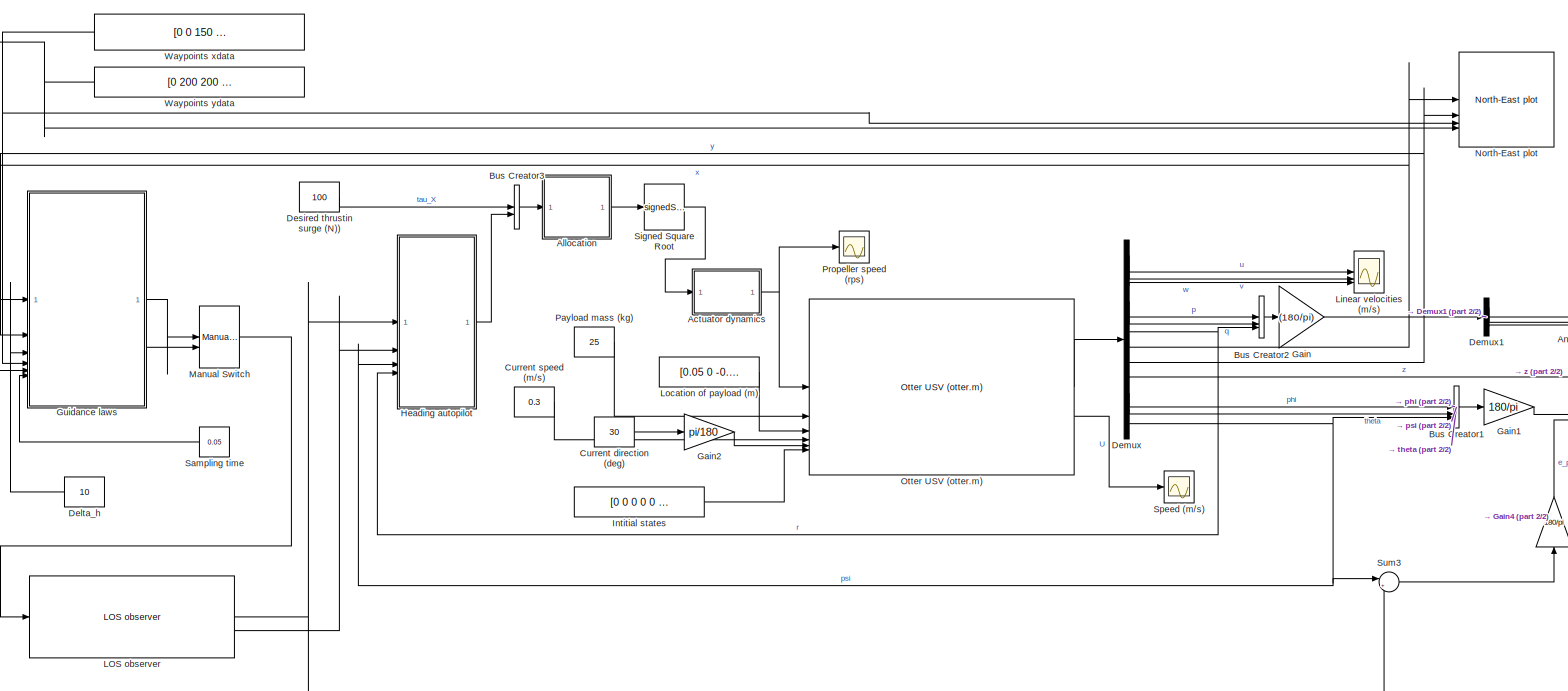
[diagram: root canvas - part 1/2, most of the canvas]
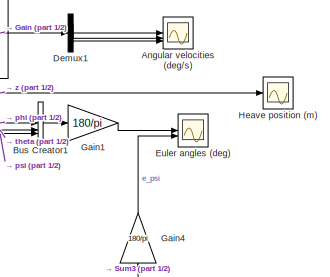
[diagram: root canvas - part 2/2, middle right region]
MODEL slx_11f2b5283f90
KIND model
CONFIG AbsTol = auto
CONFIG EnableMultiTasking = off
CONFIG FixedStep = 0.05
CONFIG MaxStep = auto
CONFIG MinStep = auto
CONFIG RelTol = 1e-3
CONFIG SampleTimeConstraint = Unconstrained
CONFIG SolverName = ode4
CONFIG StartTime = 0.0
CONFIG StopTime = 1200
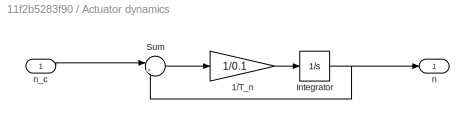
BLOCK [SubSystem] Actuator dynamics
BLOCK [Gain] Actuator dynamics/1//T_n
  Gain = 1/0.1
BLOCK [Integrator] Actuator dynamics/Integrator
BLOCK [Sum] Actuator dynamics/Sum
  Inputs = |+-
BLOCK [Outport] Actuator dynamics/n
BLOCK [Inport] Actuator dynamics/n_c
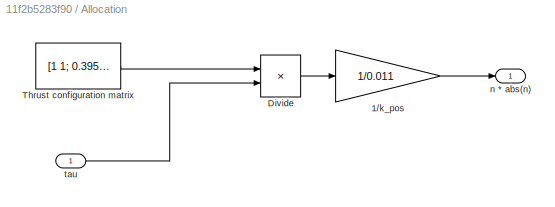
BLOCK [SubSystem] Allocation
BLOCK [Gain] Allocation/1//k_pos
  Gain = 1/0.011
BLOCK [Product] Allocation/Divide
  Inputs = /*
  Multiplication = Matrix(*)
BLOCK [Constant] Allocation/Thrust configuration matrix
  Value = [1 1; 0.395 -0.395]
BLOCK [Outport] Allocation/n * abs(n)
BLOCK [Inport] Allocation/tau
BLOCK [Scope] Angular velocities (deg//s)
  Floating = off
  NumInputPorts = 3
  ScopeSpecificationString = Simulink.scopes.TimeScopeBlockCfg('CurrentConfiguration', extmgr.ConfigurationSet(extmgr.Configuration('Core','General UI',true),extmgr.Configuration('Core','Source UI',true),extmgr.Configuration('Sources','WiredSimulink',true,'DataLoggingVariableName','ScopeData3'),extmgr.Configuration('Visuals','Time Domain',true,'SerializedDisplays',{struct('MinYLimReal','-1.5053','MaxYLimReal','1.05863','YLabe...<+2992ch>
BLOCK [BusCreator] Bus Creator1
  DisplayOption = bar
  InheritFromInputs = on
  Inputs = 3
BLOCK [BusCreator] Bus Creator2
  DisplayOption = bar
  InheritFromInputs = on
  Inputs = 3
BLOCK [BusCreator] Bus Creator3
  DisplayOption = bar
  InheritFromInputs = on
  Inputs = 2
BLOCK [Constant] Current direction (deg)
  Value = 30
BLOCK [Constant] Current speed (m//s)
  Value = 0.3
BLOCK [Constant] Delta_h
  NameLocation = top
  Value = 10
BLOCK [Demux] Demux
  Outputs = 12
BLOCK [Demux] Demux1
  Outputs = 3
BLOCK [Constant] Desired thrustin surge (N))
  Value = 100
BLOCK [Scope] Euler angles (deg)
  Floating = off
  NumInputPorts = 2
  ScopeSpecificationString = Simulink.scopes.TimeScopeBlockCfg('CurrentConfiguration', extmgr.ConfigurationSet(extmgr.Configuration('Core','General UI',true),extmgr.Configuration('Core','Source UI',true),extmgr.Configuration('Sources','WiredSimulink',true,'DataLoggingVariableName','ScopeData1'),extmgr.Configuration('Visuals','Time Domain',true,'SerializedDisplays',{struct('MinYLimReal','-453.68284','MaxYLimReal','213.86847','...<+2407ch>
BLOCK [Gain] Gain
  Gain = (180/pi)
BLOCK [Gain] Gain1
  Gain = 180/pi
BLOCK [Gain] Gain2
  Gain = pi/180
BLOCK [Gain] Gain4
  Gain = 180/pi
  NameLocation = right
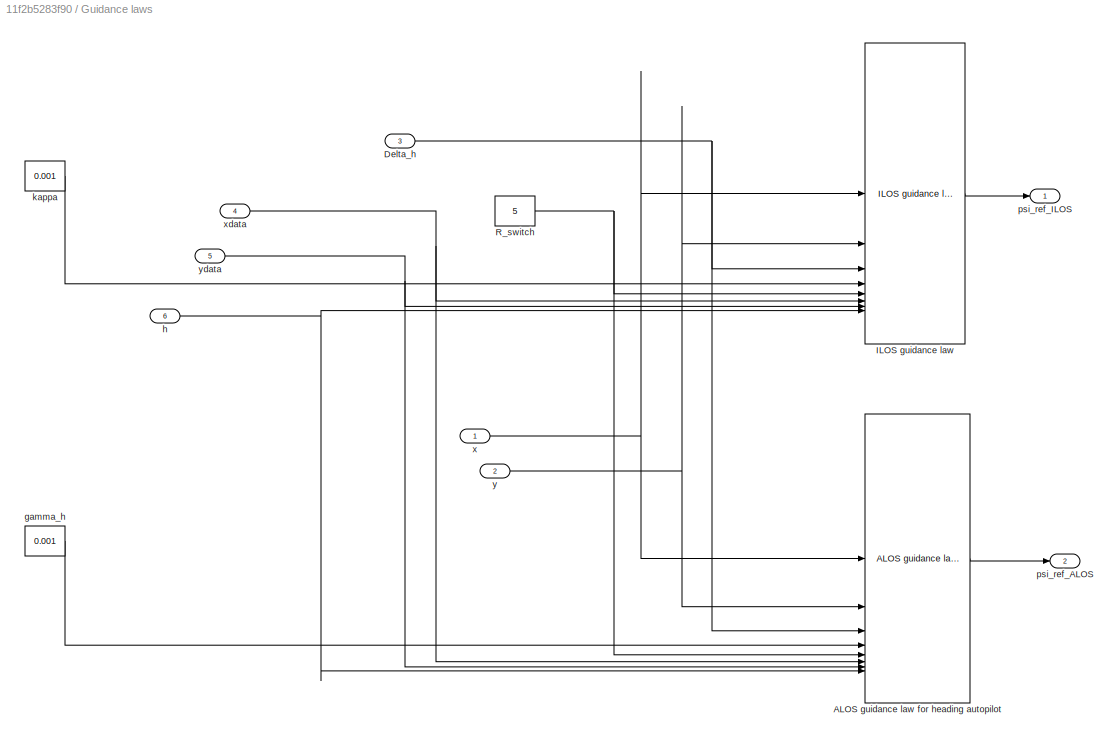
BLOCK [SubSystem] Guidance laws
BLOCK [Reference] Guidance laws/ALOS guidance law for heading autopilot  REF=mssSimulink/Guidance/ALOS guidance law for heading autopilot
  SourceBlock = mssSimulink/Guidance/ALOS guidance law for heading autopilot
  SourceType = SubSystem
BLOCK [Inport] Guidance laws/Delta_h
  Port = 3
BLOCK [Reference] Guidance laws/ILOS guidance law  REF=mssSimulink/Guidance/ILOS guidance law for heading autopilot
  SourceBlock = mssSimulink/Guidance/ILOS guidance law for heading autopilot
  SourceType = SubSystem
BLOCK [Constant] Guidance laws/R_switch
  Value = 5
BLOCK [Constant] Guidance laws/gamma_h
  Value = 0.001
BLOCK [Inport] Guidance laws/h
  Port = 6
BLOCK [Constant] Guidance laws/kappa
  Value = 0.001
BLOCK [Outport] Guidance laws/psi_ref_ALOS
  Port = 2
BLOCK [Outport] Guidance laws/psi_ref_ILOS
BLOCK [Inport] Guidance laws/x
BLOCK [Inport] Guidance laws/xdata
  Port = 4
BLOCK [Inport] Guidance laws/y
  Port = 2
BLOCK [Inport] Guidance laws/ydata
  Port = 5
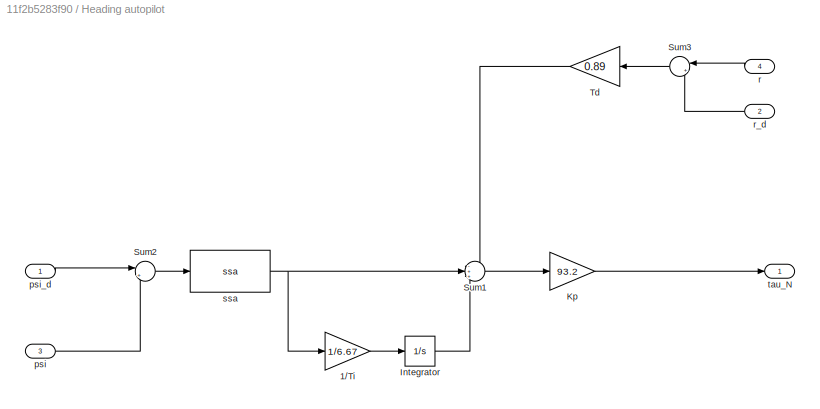
BLOCK [SubSystem] Heading autopilot
BLOCK [Gain] Heading autopilot/1//Ti
  Gain = 1/6.67
  NameLocation = top
  OutDataTypeStr = Inherit: Same as input
  ParamDataTypeStr = Inherit: Same as input
  SaturateOnIntegerOverflow = on
BLOCK [Integrator] Heading autopilot/Integrator
BLOCK [Gain] Heading autopilot/Kp
  Gain = 93.2
  NameLocation = top
  OutDataTypeStr = Inherit: Same as input
  ParamDataTypeStr = Inherit: Same as input
  SaturateOnIntegerOverflow = on
BLOCK [Sum] Heading autopilot/Sum1
  InputSameDT = on
  Inputs = -++
  OutDataTypeStr = Inherit: Same as first input
  SaturateOnIntegerOverflow = on
BLOCK [Sum] Heading autopilot/Sum2
  InputSameDT = on
  Inputs = |+-
  OutDataTypeStr = Inherit: Same as first input
  SaturateOnIntegerOverflow = on
BLOCK [Sum] Heading autopilot/Sum3
  InputSameDT = on
  Inputs = |+-
  NameLocation = top
  OutDataTypeStr = Inherit: Same as first input
  SaturateOnIntegerOverflow = on
BLOCK [Gain] Heading autopilot/Td
  Gain = 0.89
  NameLocation = top
  OutDataTypeStr = Inherit: Same as input
  ParamDataTypeStr = Inherit: Same as input
  SaturateOnIntegerOverflow = on
BLOCK [Inport] Heading autopilot/psi
  Port = 3
BLOCK [Inport] Heading autopilot/psi_d
BLOCK [Inport] Heading autopilot/r
  NameLocation = top
  Port = 4
BLOCK [Inport] Heading autopilot/r_d
  NameLocation = top
  Port = 2
BLOCK [Reference] Heading autopilot/ssa   REF=mssSimulink/Utilities/Math Operations/ssa
  SourceBlock = mssSimulink/Utilities/Math Operations/ssa
  SourceType = SubSystem
BLOCK [Outport] Heading autopilot/tau_N
BLOCK [Scope] Heave position (m)
  Floating = off
  NumInputPorts = 1
  ScopeSpecificationString = Simulink.scopes.TimeScopeBlockCfg('CurrentConfiguration', extmgr.ConfigurationSet(extmgr.Configuration('Core','General UI',true),extmgr.Configuration('Core','Source UI',true),extmgr.Configuration('Sources','WiredSimulink',true,'DataLoggingVariableName','ScopeData4'),extmgr.Configuration('Visuals','Time Domain',true,'SerializedDisplays',{struct('MinYLimReal','-0.00647','MaxYLimReal','0.05824','YLab...<+1640ch>
BLOCK [Constant] Intitial states
  Value = [0 0 0 0 0 0 0 0 0 0 0 0]
BLOCK [Reference] LOS observer  REF=mssSimulink/Guidance/LOS observer
  SourceBlock = mssSimulink/Guidance/LOS observer
  SourceType = LOS observer
BLOCK [Scope] Linear velocities (m//s)
  Floating = off
  NumInputPorts = 3
  ScopeSpecificationString = Simulink.scopes.TimeScopeBlockCfg('CurrentConfiguration', extmgr.ConfigurationSet(extmgr.Configuration('Core','General UI',true),extmgr.Configuration('Core','Source UI',true),extmgr.Configuration('Sources','WiredSimulink',true,'DataLoggingVariableName','ScopeData2'),extmgr.Configuration('Visuals','Time Domain',true,'SerializedDisplays',{struct('MinYLimReal','-0.19607','MaxYLimReal','1.76461','YLab...<+3341ch>
BLOCK [Constant] Location of payload (m)
  Value = [0.05 0 -0.35]
BLOCK [ManualSwitch] Manual Switch
BLOCK [Reference] North-East plot  REF=mssSimulink/Utilities/Visualization/North-East plot
  SourceBlock = mssSimulink/Utilities/Visualization/North-East plot
BLOCK [Reference] Otter USV (otter.m)   REF=mssSimulink/Marine craft models/Otter USV (otter.m)
  SourceBlock = mssSimulink/Marine craft models/Otter USV (otter.m)
BLOCK [Constant] Payload mass (kg)
  Value = 25
BLOCK [Scope] Propeller speed (rps)
  Floating = off
  NumInputPorts = 1
  ScopeSpecificationString = Simulink.scopes.TimeScopeBlockCfg('CurrentConfiguration', extmgr.ConfigurationSet(extmgr.Configuration('Core','General UI',true),extmgr.Configuration('Core','Source UI',true),extmgr.Configuration('Sources','WiredSimulink',true,'DataLoggingVariableName','ScopeData1'),extmgr.Configuration('Visuals','Time Domain',true,'SerializedDisplays',{struct('MinYLimReal','-154.47777','MaxYLimReal','187.68868','...<+1630ch>
BLOCK [Constant] Sampling time
  NameLocation = top
  Value = 0.05
BLOCK [Sqrt] Signed Square Root
  Operator = signedSqrt
BLOCK [Scope] Speed (m//s)
  Floating = off
  NumInputPorts = 1
  ScopeSpecificationString = Simulink.scopes.TimeScopeBlockCfg('CurrentConfiguration', extmgr.ConfigurationSet(extmgr.Configuration('Core','General UI',true),extmgr.Configuration('Core','Source UI',true),extmgr.Configuration('Sources','WiredSimulink',true),extmgr.Configuration('Visuals','Time Domain',true,'SerializedDisplays',{struct('MinYLimReal','-0.19141','MaxYLimReal','1.72272','YLabelReal','','MinYLimMag','0.00000','MaxY...<+1482ch>
BLOCK [Sum] Sum3
  InputSameDT = on
  Inputs = |+-
  OutDataTypeStr = Inherit: Same as first input
  SaturateOnIntegerOverflow = on
BLOCK [Constant] Waypoints xdata
  NameLocation = top
  Value = [0 0   150 150 -100 -100 200]'
BLOCK [Constant] Waypoints ydata
  NameLocation = top
  Value = [0 200 200 -50  -50  250 250]'
LINE Actuator dynamics/1//T_n:1 -> Actuator dynamics/Integrator:1
NET Actuator dynamics/Integrator:1 -> Actuator dynamics/Sum:2, Actuator dynamics/n:1
LINE Actuator dynamics/Sum:1 -> Actuator dynamics/1//T_n:1
LINE Actuator dynamics/n_c:1 -> Actuator dynamics/Sum:1
NET Actuator dynamics:1 -> Otter USV (otter.m) :1, Propeller speed (rps):1
LINE Allocation/1//k_pos:1 -> Allocation/n * abs(n):1
LINE Allocation/Divide:1 -> Allocation/1//k_pos:1
LINE Allocation/Thrust configuration matrix:1 -> Allocation/Divide:1
LINE Allocation/tau:1 -> Allocation/Divide:2
LINE Allocation:1 -> Signed Square Root:1
LINE Bus Creator1:1 -> Gain1:1
LINE Bus Creator2:1 -> Gain:1
LINE Bus Creator3:1 -> Allocation:1
LINE Current direction (deg):1 -> Gain2:1
LINE Current speed (m//s):1 -> Otter USV (otter.m) :4
LINE Delta_h:1 -> Guidance laws:3
LINE Demux1:1 -> Angular velocities (deg//s):1
LINE Demux1:2 -> Angular velocities (deg//s):2
LINE Demux1:3 -> Angular velocities (deg//s):3
LINE Demux:1 -> Linear velocities (m//s):1
LINE Demux:10 -> Bus Creator1:1
LINE Demux:11 -> Bus Creator1:2
NET Demux:12 -> Bus Creator1:3, Heading autopilot:3, Sum3:1
LINE Demux:2 -> Linear velocities (m//s):2
LINE Demux:3 -> Linear velocities (m//s):3
LINE Demux:4 -> Bus Creator2:1
LINE Demux:5 -> Bus Creator2:2
NET Demux:6 -> Bus Creator2:3, Heading autopilot:4
NET Demux:7 -> Guidance laws:1, North-East plot:1
NET Demux:8 -> Guidance laws:2, North-East plot:2
LINE Demux:9 -> Heave position (m):1
LINE Desired thrustin surge (N)):1 -> Bus Creator3:1
LINE Gain1:1 -> Euler angles (deg):1
LINE Gain2:1 -> Otter USV (otter.m) :5
LINE Gain4:1 -> Euler angles (deg):2
LINE Gain:1 -> Demux1:1
LINE Guidance laws/ALOS guidance law for heading autopilot:1 -> Guidance laws/psi_ref_ALOS:1
NET Guidance laws/Delta_h:1 -> Guidance laws/ALOS guidance law for heading autopilot:3, Guidance laws/ILOS guidance law:3
LINE Guidance laws/ILOS guidance law:1 -> Guidance laws/psi_ref_ILOS:1
NET Guidance laws/R_switch:1 -> Guidance laws/ALOS guidance law for heading autopilot:5, Guidance laws/ILOS guidance law:5
LINE Guidance laws/gamma_h:1 -> Guidance laws/ALOS guidance law for heading autopilot:4
NET Guidance laws/h:1 -> Guidance laws/ALOS guidance law for heading autopilot:8, Guidance laws/ILOS guidance law:8
LINE Guidance laws/kappa:1 -> Guidance laws/ILOS guidance law:4
NET Guidance laws/x:1 -> Guidance laws/ALOS guidance law for heading autopilot:1, Guidance laws/ILOS guidance law:1
NET Guidance laws/xdata:1 -> Guidance laws/ALOS guidance law for heading autopilot:6, Guidance laws/ILOS guidance law:6
NET Guidance laws/y:1 -> Guidance laws/ALOS guidance law for heading autopilot:2, Guidance laws/ILOS guidance law:2
NET Guidance laws/ydata:1 -> Guidance laws/ALOS guidance law for heading autopilot:7, Guidance laws/ILOS guidance law:7
LINE Guidance laws:1 -> Manual Switch:1
LINE Guidance laws:2 -> Manual Switch:2
LINE Heading autopilot/1//Ti:1 -> Heading autopilot/Integrator:1
LINE Heading autopilot/Integrator:1 -> Heading autopilot/Sum1:3
LINE Heading autopilot/Kp:1 -> Heading autopilot/tau_N:1
LINE Heading autopilot/Sum1:1 -> Heading autopilot/Kp:1
LINE Heading autopilot/Sum2:1 -> Heading autopilot/ssa :1
LINE Heading autopilot/Sum3:1 -> Heading autopilot/Td:1
LINE Heading autopilot/Td:1 -> Heading autopilot/Sum1:1
LINE Heading autopilot/psi:1 -> Heading autopilot/Sum2:2
LINE Heading autopilot/psi_d:1 -> Heading autopilot/Sum2:1
LINE Heading autopilot/r:1 -> Heading autopilot/Sum3:1
LINE Heading autopilot/r_d:1 -> Heading autopilot/Sum3:2
NET Heading autopilot/ssa :1 -> Heading autopilot/1//Ti:1, Heading autopilot/Sum1:2
LINE Heading autopilot:1 -> Bus Creator3:2
LINE Intitial states:1 -> Otter USV (otter.m) :6
NET LOS observer:1 -> Heading autopilot:1, Sum3:2
LINE LOS observer:2 -> Heading autopilot:2
LINE Location of payload (m):1 -> Otter USV (otter.m) :3
LINE Manual Switch:1 -> LOS observer:1
LINE Otter USV (otter.m) :1 -> Demux:1
LINE Otter USV (otter.m) :2 -> Speed (m//s):1
LINE Payload mass (kg):1 -> Otter USV (otter.m) :2
LINE Sampling time:1 -> Guidance laws:6
LINE Signed Square Root:1 -> Actuator dynamics:1
LINE Sum3:1 -> Gain4:1
NET Waypoints xdata:1 -> Guidance laws:4, North-East plot:3
NET Waypoints ydata:1 -> Guidance laws:5, North-East plot:4
note: NET lines group one-source signal fan-out (src -> all destinations, sorted); 1:1 wires keep LINE
